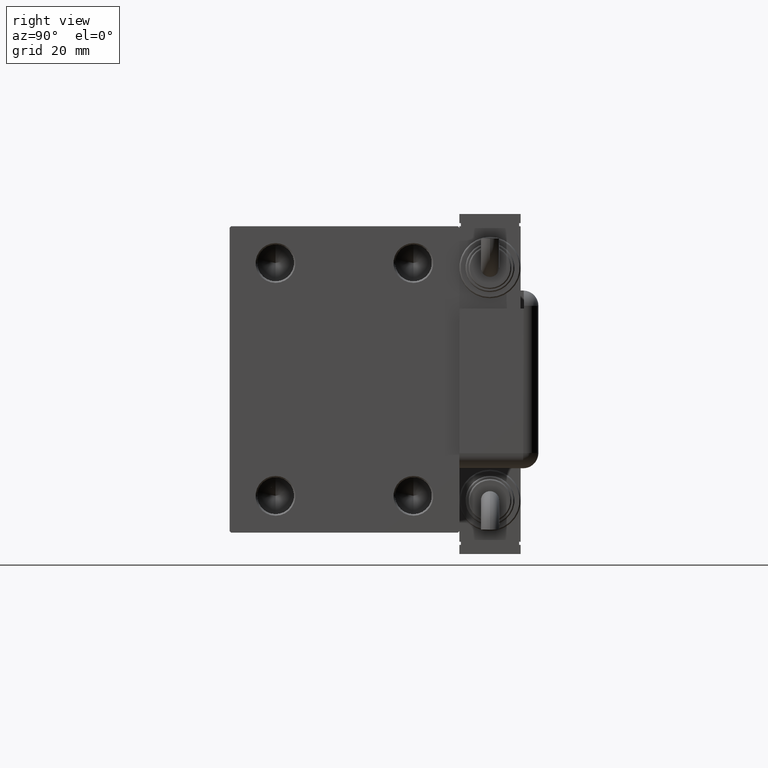
[diagram: clean part render]
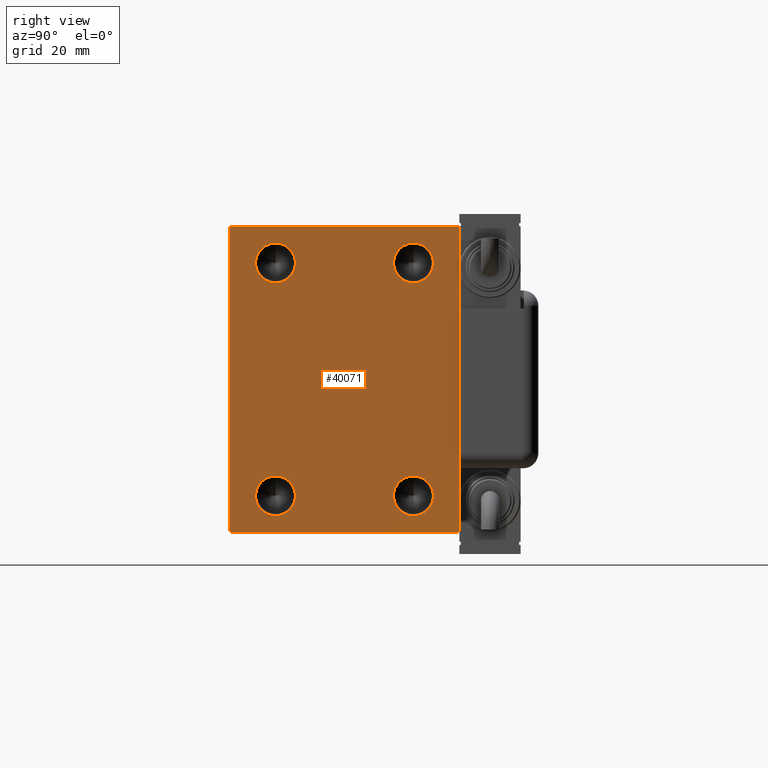
[diagram: same view with one face highlighted and labeled with its STEP entity id]
A machine part, right view. The second image highlights one B-rep face of the part: STEP entity #40071.
In plain terms, the highlighted planar face has unit normal (1, 0, 0).
Its self-contained STEP definition (entity closure, byte-faithful):
#274 = VERTEX_POINT ( 'NONE', #32861 ) ;
#325 = VERTEX_POINT ( 'NONE', #19976 ) ;
#470 = EDGE_CURVE ( 'NONE', #23780, #16778, #2288, .T. ) ;
#1175 = DIRECTION ( 'NONE',  ( 0.000000000000000000, 0.000000000000000000, -1.000000000000000000 ) ) ;
#1966 = CARTESIAN_POINT ( 'NONE',  ( 98.00000000000000000, 43.49999999999974420, 43.50000000000035527 ) ) ;
#2288 = LINE ( 'NONE', #20439, #9667 ) ;
#2297 = CARTESIAN_POINT ( 'NONE',  ( 98.00000000000000000, 22.50000000000000000, 44.49999999999998579 ) ) ;
#2780 = VERTEX_POINT ( 'NONE', #2925 ) ;
#2798 = EDGE_CURVE ( 'NONE', #43878, #325, #37790, .T. ) ;
#2925 = CARTESIAN_POINT ( 'NONE',  ( 98.00000000000000000, -22.50000000000000000, -44.50000000000000000 ) ) ;
#2971 = DIRECTION ( 'NONE',  ( 0.000000000000000000, 0.000000000000000000, -1.000000000000000000 ) ) ;
#3233 = CARTESIAN_POINT ( 'NONE',  ( 98.00000000000000000, 22.50000000000000000, -38.00000000000000711 ) ) ;
#3891 = CARTESIAN_POINT ( 'NONE',  ( 98.00000000000000000, 43.49999999999974420, -43.50000000000034817 ) ) ;
#5515 = CIRCLE ( 'NONE', #40571, 6.499999999999992006 ) ;
#5547 = EDGE_CURVE ( 'NONE', #45592, #53910, #35941, .T. ) ;
#5554 = DIRECTION ( 'NONE',  ( 1.000000000000000000, 0.000000000000000000, 0.000000000000000000 ) ) ;
#6501 = ORIENTED_EDGE ( 'NONE', *, *, #13903, .F. ) ;
#6513 = EDGE_CURVE ( 'NONE', #6902, #13065, #45941, .T. ) ;
#6902 = VERTEX_POINT ( 'NONE', #25981 ) ;
#7398 = CARTESIAN_POINT ( 'NONE',  ( 98.00000000000000000, -43.49999999999972999, 43.50000000000034106 ) ) ;
#7705 = CARTESIAN_POINT ( 'NONE',  ( 98.00000000000000000, 22.50000000000000000, 31.50000000000000000 ) ) ;
#8265 = LINE ( 'NONE', #3891, #33956 ) ;
#8792 = DIRECTION ( 'NONE',  ( 1.000000000000000000, -0.000000000000000000, -0.000000000000000000 ) ) ;
#8938 = VERTEX_POINT ( 'NONE', #31633 ) ;
#9008 = ORIENTED_EDGE ( 'NONE', *, *, #42903, .T. ) ;
#9101 = DIRECTION ( 'NONE',  ( 0.000000000000000000, 0.000000000000000000, -1.000000000000000000 ) ) ;
#9667 = VECTOR ( 'NONE', #35829, 1000.000000000000000 ) ;
#9873 = EDGE_LOOP ( 'NONE', ( #52041, #40167 ) ) ;
#10430 = DIRECTION ( 'NONE',  ( 1.000000000000000000, -0.000000000000000000, -0.000000000000000000 ) ) ;
#10730 = VECTOR ( 'NONE', #20425, 999.9999999999998863 ) ;
#10859 = FACE_BOUND ( 'NONE', #23844, .T. ) ;
#10951 = CIRCLE ( 'NONE', #34025, 6.499999999999992006 ) ;
#11476 = DIRECTION ( 'NONE',  ( 0.000000000000000000, 0.000000000000000000, -1.000000000000000000 ) ) ;
#11711 = VECTOR ( 'NONE', #12933, 1000.000000000000000 ) ;
#11737 = DIRECTION ( 'NONE',  ( 1.000000000000000000, -0.000000000000000000, -0.000000000000000000 ) ) ;
#12933 = DIRECTION ( 'NONE',  ( 0.000000000000000000, -1.000000000000000000, -2.775557561562891844E-16 ) ) ;
#13065 = VERTEX_POINT ( 'NONE', #17227 ) ;
#13624 = EDGE_CURVE ( 'NONE', #33971, #274, #30893, .T. ) ;
#13750 = AXIS2_PLACEMENT_3D ( 'NONE', #3233, #55247, #35542 ) ;
#13903 = EDGE_CURVE ( 'NONE', #325, #43878, #29602, .T. ) ;
#14833 = DIRECTION ( 'NONE',  ( 1.000000000000000000, -0.000000000000000000, -0.000000000000000000 ) ) ;
#15666 = EDGE_LOOP ( 'NONE', ( #37133, #45108 ) ) ;
#15843 = DIRECTION ( 'NONE',  ( 0.000000000000000000, 0.000000000000000000, -1.000000000000000000 ) ) ;
#16002 = AXIS2_PLACEMENT_3D ( 'NONE', #32624, #8792, #9101 ) ;
#16508 = FACE_BOUND ( 'NONE', #15666, .T. ) ;
#16618 = CIRCLE ( 'NONE', #22660, 6.499999999999992006 ) ;
#16778 = VERTEX_POINT ( 'NONE', #39764 ) ;
#17165 = EDGE_CURVE ( 'NONE', #38108, #6902, #31761, .T. ) ;
#17227 = CARTESIAN_POINT ( 'NONE',  ( 98.00000000000000000, -37.50000000000000000, 49.49999999999998579 ) ) ;
#17241 = VERTEX_POINT ( 'NONE', #52705 ) ;
#17843 = EDGE_CURVE ( 'NONE', #53910, #45592, #50809, .T. ) ;
#18411 = DIRECTION ( 'NONE',  ( 1.000000000000000000, -0.000000000000000000, -0.000000000000000000 ) ) ;
#18972 = ORIENTED_EDGE ( 'NONE', *, *, #13624, .T. ) ;
#19376 = ORIENTED_EDGE ( 'NONE', *, *, #470, .T. ) ;
#19575 = VECTOR ( 'NONE', #54394, 1000.000000000000000 ) ;
#19976 = CARTESIAN_POINT ( 'NONE',  ( 98.00000000000000000, 22.50000000000000000, -31.50000000000001421 ) ) ;
#20215 = ORIENTED_EDGE ( 'NONE', *, *, #28095, .T. ) ;
#20263 = PLANE ( 'NONE',  #24306 ) ;
#20266 = DIRECTION ( 'NONE',  ( 0.000000000000000000, 0.000000000000000000, -1.000000000000000000 ) ) ;
#20425 = DIRECTION ( 'NONE',  ( -0.000000000000000000, -0.7071067811865525687, 0.7071067811865425767 ) ) ;
#20439 = CARTESIAN_POINT ( 'NONE',  ( 98.00000000000000000, 37.50000000000000711, -50.00000000000000000 ) ) ;
#20903 = DIRECTION ( 'NONE',  ( 1.000000000000000000, -0.000000000000000000, -0.000000000000000000 ) ) ;
#21487 = CARTESIAN_POINT ( 'NONE',  ( 98.00000000000000000, -37.50000000000000000, -50.00000000000000000 ) ) ;
#21606 = AXIS2_PLACEMENT_3D ( 'NONE', #52764, #10430, #23327 ) ;
#22463 = EDGE_CURVE ( 'NONE', #274, #23780, #8265, .T. ) ;
#22469 = DIRECTION ( 'NONE',  ( 0.000000000000000000, 0.000000000000000000, -1.000000000000000000 ) ) ;
#22491 = DIRECTION ( 'NONE',  ( -0.000000000000000000, 0.7071067811865474617, -0.7071067811865474617 ) ) ;
#22660 = AXIS2_PLACEMENT_3D ( 'NONE', #45899, #11737, #2971 ) ;
#23326 = ORIENTED_EDGE ( 'NONE', *, *, #45532, .F. ) ;
#23327 = DIRECTION ( 'NONE',  ( 0.000000000000000000, 0.000000000000000000, -1.000000000000000000 ) ) ;
#23780 = VERTEX_POINT ( 'NONE', #34816 ) ;
#23844 = EDGE_LOOP ( 'NONE', ( #6501, #59665 ) ) ;
#24306 = AXIS2_PLACEMENT_3D ( 'NONE', #48478, #5554, #1175 ) ;
#24978 = FACE_BOUND ( 'NONE', #48543, .T. ) ;
#25245 = LINE ( 'NONE', #58758, #28426 ) ;
#25765 = LINE ( 'NONE', #1966, #10730 ) ;
#25811 = DIRECTION ( 'NONE',  ( 0.000000000000000000, 0.000000000000000000, -1.000000000000000000 ) ) ;
#25981 = CARTESIAN_POINT ( 'NONE',  ( 98.00000000000000000, -36.99999999999999289, 49.99999999999998579 ) ) ;
#26029 = VECTOR ( 'NONE', #22491, 1000.000000000000114 ) ;
#26711 = EDGE_CURVE ( 'NONE', #57189, #17241, #27013, .T. ) ;
#27013 = CIRCLE ( 'NONE', #16002, 6.499999999999992006 ) ;
#27080 = VECTOR ( 'NONE', #54722, 999.9999999999998863 ) ;
#27398 = DIRECTION ( 'NONE',  ( -0.000000000000000000, 0.7071067811865524577, 0.7071067811865426878 ) ) ;
#28095 = EDGE_CURVE ( 'NONE', #39419, #33971, #33136, .T. ) ;
#28426 = VECTOR ( 'NONE', #15843, 1000.000000000000000 ) ;
#29565 = CARTESIAN_POINT ( 'NONE',  ( 98.00000000000000000, 22.50000000000000000, -44.50000000000000000 ) ) ;
#29602 = CIRCLE ( 'NONE', #21606, 6.499999999999992006 ) ;
#30893 = LINE ( 'NONE', #21487, #19575 ) ;
#31525 = ORIENTED_EDGE ( 'NONE', *, *, #48553, .F. ) ;
#31633 = CARTESIAN_POINT ( 'NONE',  ( 98.00000000000000000, -22.50000000000000000, -31.50000000000001421 ) ) ;
#31761 = LINE ( 'NONE', #41466, #11711 ) ;
#32624 = CARTESIAN_POINT ( 'NONE',  ( 98.00000000000000000, -22.50000000000000000, 37.99999999999999289 ) ) ;
#32861 = CARTESIAN_POINT ( 'NONE',  ( 98.00000000000000000, 37.00000000000001421, -50.00000000000000000 ) ) ;
#33136 = LINE ( 'NONE', #37219, #26029 ) ;
#33651 = CARTESIAN_POINT ( 'NONE',  ( 98.00000000000000000, -22.50000000000000000, -38.00000000000000711 ) ) ;
#33824 = CARTESIAN_POINT ( 'NONE',  ( 98.00000000000000000, 37.00000000000000711, 50.00000000000000711 ) ) ;
#33956 = VECTOR ( 'NONE', #27398, 1000.000000000000000 ) ;
#33971 = VERTEX_POINT ( 'NONE', #56618 ) ;
#34025 = AXIS2_PLACEMENT_3D ( 'NONE', #44095, #20903, #20266 ) ;
#34816 = CARTESIAN_POINT ( 'NONE',  ( 98.00000000000000000, 37.50000000000000711, -49.50000000000001421 ) ) ;
#34913 = CARTESIAN_POINT ( 'NONE',  ( 98.00000000000000000, 22.50000000000000000, 37.99999999999999289 ) ) ;
#35542 = DIRECTION ( 'NONE',  ( 0.000000000000000000, 0.000000000000000000, -1.000000000000000000 ) ) ;
#35652 = FACE_OUTER_BOUND ( 'NONE', #50437, .T. ) ;
#35829 = DIRECTION ( 'NONE',  ( 0.000000000000000000, -1.387778780781445676E-16, 1.000000000000000000 ) ) ;
#35941 = CIRCLE ( 'NONE', #50935, 6.499999999999992006 ) ;
#37133 = ORIENTED_EDGE ( 'NONE', *, *, #5547, .F. ) ;
#37219 = CARTESIAN_POINT ( 'NONE',  ( 98.00000000000000000, -43.50000000000000711, -43.50000000000000711 ) ) ;
#37790 = CIRCLE ( 'NONE', #13750, 6.499999999999992006 ) ;
#37797 = AXIS2_PLACEMENT_3D ( 'NONE', #57869, #18411, #11476 ) ;
#38108 = VERTEX_POINT ( 'NONE', #33824 ) ;
#39419 = VERTEX_POINT ( 'NONE', #41853 ) ;
#39764 = CARTESIAN_POINT ( 'NONE',  ( 98.00000000000000000, 37.49999999999999289, 49.50000000000002842 ) ) ;
#40071 = ADVANCED_FACE ( 'NONE', ( #16508, #58194, #24978, #10859, #35652 ), #20263, .T. ) ;
#40167 = ORIENTED_EDGE ( 'NONE', *, *, #59534, .F. ) ;
#40571 = AXIS2_PLACEMENT_3D ( 'NONE', #33651, #14833, #22469 ) ;
#41466 = CARTESIAN_POINT ( 'NONE',  ( 98.00000000000000000, 37.49999999999999289, 50.00000000000000711 ) ) ;
#41853 = CARTESIAN_POINT ( 'NONE',  ( 98.00000000000000000, -37.50000000000000000, -49.49999999999997158 ) ) ;
#42903 = EDGE_CURVE ( 'NONE', #13065, #39419, #25245, .T. ) ;
#43878 = VERTEX_POINT ( 'NONE', #29565 ) ;
#44095 = CARTESIAN_POINT ( 'NONE',  ( 98.00000000000000000, -22.50000000000000000, 37.99999999999999289 ) ) ;
#44620 = DIRECTION ( 'NONE',  ( 1.000000000000000000, -0.000000000000000000, -0.000000000000000000 ) ) ;
#45108 = ORIENTED_EDGE ( 'NONE', *, *, #17843, .F. ) ;
#45532 = EDGE_CURVE ( 'NONE', #2780, #8938, #5515, .T. ) ;
#45592 = VERTEX_POINT ( 'NONE', #2297 ) ;
#45899 = CARTESIAN_POINT ( 'NONE',  ( 98.00000000000000000, -22.50000000000000000, -38.00000000000000711 ) ) ;
#45941 = LINE ( 'NONE', #7398, #27080 ) ;
#48478 = CARTESIAN_POINT ( 'NONE',  ( 98.00000000000000000, 0.000000000000000000, 0.000000000000000000 ) ) ;
#48543 = EDGE_LOOP ( 'NONE', ( #31525, #23326 ) ) ;
#48553 = EDGE_CURVE ( 'NONE', #8938, #2780, #16618, .T. ) ;
#49992 = ORIENTED_EDGE ( 'NONE', *, *, #22463, .T. ) ;
#50437 = EDGE_LOOP ( 'NONE', ( #60620, #61586, #9008, #20215, #18972, #49992, #19376, #53569 ) ) ;
#50809 = CIRCLE ( 'NONE', #37797, 6.499999999999992006 ) ;
#50935 = AXIS2_PLACEMENT_3D ( 'NONE', #34913, #44620, #25811 ) ;
#52041 = ORIENTED_EDGE ( 'NONE', *, *, #26711, .F. ) ;
#52705 = CARTESIAN_POINT ( 'NONE',  ( 98.00000000000000000, -22.50000000000000000, 31.50000000000000000 ) ) ;
#52764 = CARTESIAN_POINT ( 'NONE',  ( 98.00000000000000000, 22.50000000000000000, -38.00000000000000711 ) ) ;
#53569 = ORIENTED_EDGE ( 'NONE', *, *, #54932, .T. ) ;
#53910 = VERTEX_POINT ( 'NONE', #7705 ) ;
#54394 = DIRECTION ( 'NONE',  ( 0.000000000000000000, 1.000000000000000000, 0.000000000000000000 ) ) ;
#54722 = DIRECTION ( 'NONE',  ( 0.000000000000000000, -0.7071067811865525687, -0.7071067811865425767 ) ) ;
#54932 = EDGE_CURVE ( 'NONE', #16778, #38108, #25765, .T. ) ;
#55247 = DIRECTION ( 'NONE',  ( 1.000000000000000000, -0.000000000000000000, -0.000000000000000000 ) ) ;
#56618 = CARTESIAN_POINT ( 'NONE',  ( 98.00000000000000000, -37.00000000000000000, -50.00000000000000000 ) ) ;
#57189 = VERTEX_POINT ( 'NONE', #59381 ) ;
#57869 = CARTESIAN_POINT ( 'NONE',  ( 98.00000000000000000, 22.50000000000000000, 37.99999999999999289 ) ) ;
#58194 = FACE_BOUND ( 'NONE', #9873, .T. ) ;
#58758 = CARTESIAN_POINT ( 'NONE',  ( 98.00000000000000000, -37.50000000000000000, 49.99999999999998579 ) ) ;
#59381 = CARTESIAN_POINT ( 'NONE',  ( 98.00000000000000000, -22.50000000000000000, 44.49999999999998579 ) ) ;
#59534 = EDGE_CURVE ( 'NONE', #17241, #57189, #10951, .T. ) ;
#59665 = ORIENTED_EDGE ( 'NONE', *, *, #2798, .F. ) ;
#60620 = ORIENTED_EDGE ( 'NONE', *, *, #17165, .T. ) ;
#61586 = ORIENTED_EDGE ( 'NONE', *, *, #6513, .T. ) ;